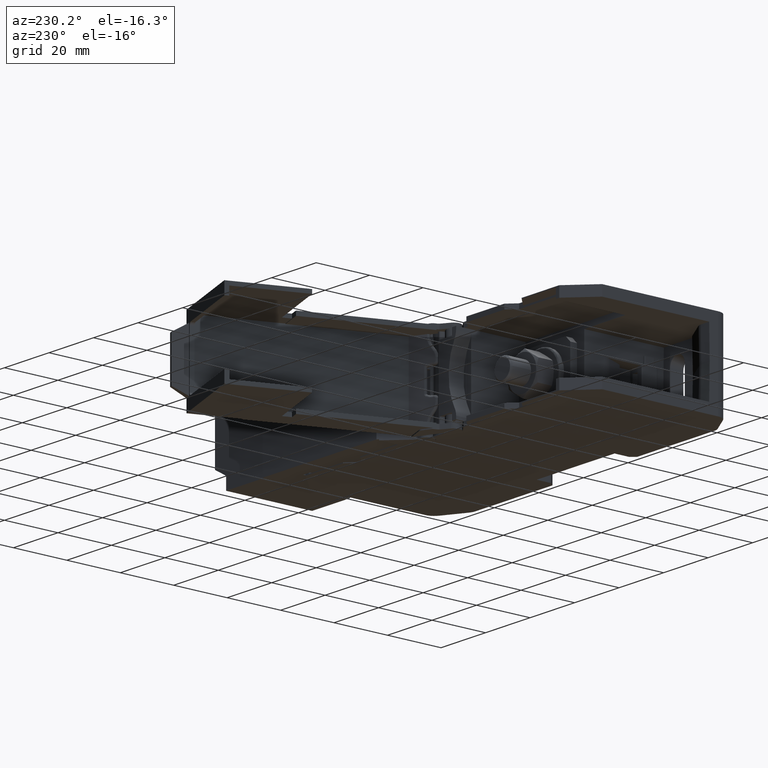
[diagram: clean part render]
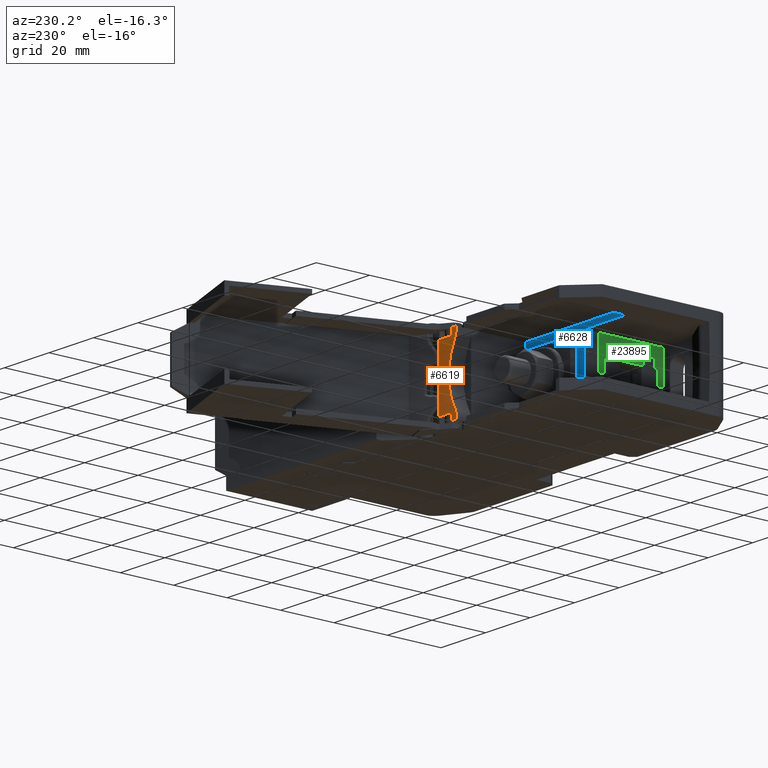
[diagram: same view with three faces highlighted in distinct colors, each labeled with its STEP entity id]
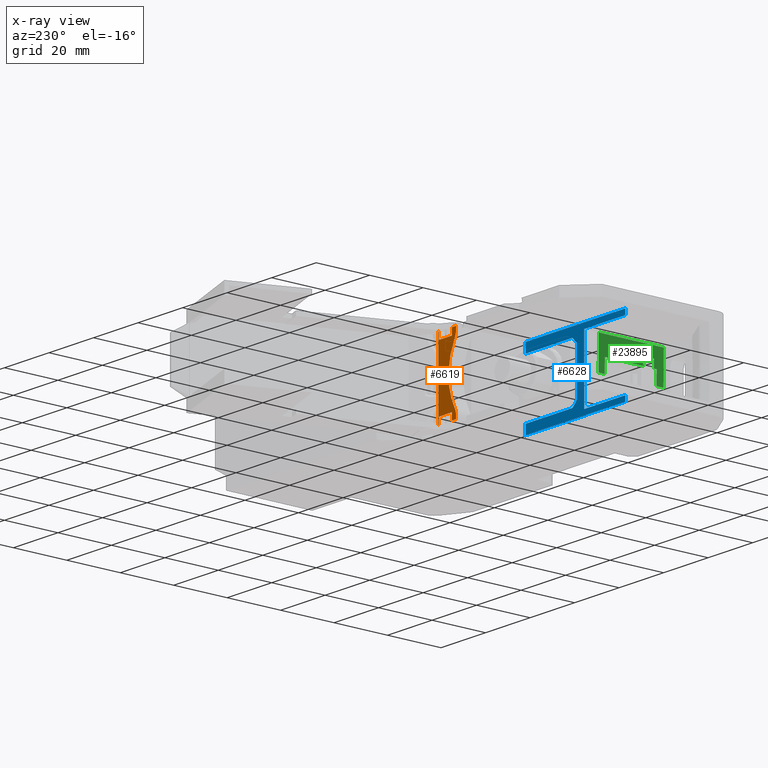
[diagram: x-ray of the same camera — body ghosted, the three highlighted faces saturated]
A machine part, auxiliary view with three faces highlighted in distinct colors.
The next image is the same camera in x-ray (body ghosted, the three faces saturated) — at least one of them is partly hidden behind the body in this view.
Their STEP definitions:

[orange] entity #6619 — the highlighted planar face has unit normal (0, -1, 0).
#1619 = VECTOR ( 'NONE', #17131, 1000.000000000000000 ) ;
#1620 = VECTOR ( 'NONE', #17224, 1000.000000000000000 ) ;
#1630 = VECTOR ( 'NONE', #17220, 1000.000000000000000 ) ;
#1681 = AXIS2_PLACEMENT_3D ( 'NONE', #17825, #17886, #17839 ) ;
#1835 = EDGE_CURVE ( 'NONE', #12487, #12671, #4652, .T. ) ;
#1923 = EDGE_CURVE ( 'NONE', #12539, #12527, #13994, .T. ) ;
#2158 = EDGE_CURVE ( 'NONE', #13461, #13237, #15697, .T. ) ;
#2173 = EDGE_CURVE ( 'NONE', #12523, #9976, #15744, .T. ) ;
#2228 = EDGE_CURVE ( 'NONE', #12479, #12507, #13569, .T. ) ;
#4652 = LINE ( 'NONE', #4657, #7566 ) ;
#4657 = CARTESIAN_POINT ( 'NONE',  ( 156.1153445845090200, 35.50000057880254200, 27.49999999999764800 ) ) ;
#4659 = DIRECTION ( 'NONE',  ( -1.000000000000000000, -0.0000000000000000000, -0.0000000000000000000 ) ) ;
#6558 = EDGE_CURVE ( 'NONE', #13236, #12539, #17117, .T. ) ;
#6560 = EDGE_CURVE ( 'NONE', #12498, #12532, #17156, .T. ) ;
#6571 = EDGE_CURVE ( 'NONE', #12496, #12520, #13661, .T. ) ;
#6574 = EDGE_CURVE ( 'NONE', #12527, #12487, #17213, .T. ) ;
#6592 = EDGE_CURVE ( 'NONE', #12520, #12479, #13644, .T. ) ;
#6619 = ADVANCED_FACE ( 'NONE', ( #17872 ), #17810, .F. ) ;
#7566 = VECTOR ( 'NONE', #4659, 1000.000000000000000 ) ;
#7650 = VECTOR ( 'NONE', #13968, 1000.000000000000000 ) ;
#7825 = VECTOR ( 'NONE', #15719, 1000.000000000000000 ) ;
#7858 = VECTOR ( 'NONE', #15786, 1000.000000000000000 ) ;
#8567 = EDGE_CURVE ( 'NONE', #13236, #13237, #22296, .T. ) ;
#9372 = EDGE_LOOP ( 'NONE', ( #17572, #17596, #17577, #17591, #17573, #17569, #17560, #17566, #17576, #17590, #17546, #17630, #17605, #17602, #17629, #17545 ) ) ;
#9976 = VERTEX_POINT ( 'NONE', #22616 ) ;
#11082 = EDGE_CURVE ( 'NONE', #13461, #9976, #24723, .T. ) ;
#12479 = VERTEX_POINT ( 'NONE', #26257 ) ;
#12487 = VERTEX_POINT ( 'NONE', #26258 ) ;
#12496 = VERTEX_POINT ( 'NONE', #26264 ) ;
#12498 = VERTEX_POINT ( 'NONE', #26268 ) ;
#12507 = VERTEX_POINT ( 'NONE', #26249 ) ;
#12520 = VERTEX_POINT ( 'NONE', #26345 ) ;
#12523 = VERTEX_POINT ( 'NONE', #26307 ) ;
#12527 = VERTEX_POINT ( 'NONE', #26321 ) ;
#12532 = VERTEX_POINT ( 'NONE', #26339 ) ;
#12539 = VERTEX_POINT ( 'NONE', #26325 ) ;
#12659 = VERTEX_POINT ( 'NONE', #26487 ) ;
#12671 = VERTEX_POINT ( 'NONE', #26469 ) ;
#13236 = VERTEX_POINT ( 'NONE', #27033 ) ;
#13237 = VERTEX_POINT ( 'NONE', #27053 ) ;
#13461 = VERTEX_POINT ( 'NONE', #27243 ) ;
#13569 = B_SPLINE_CURVE_WITH_KNOTS ( 'NONE', 3,
 ( #15897, #15899, #15857, #15923 ),
 .UNSPECIFIED., .F., .F.,
 ( 4, 4 ),
 ( 0.0000000000000000000, 1.000000000000000000 ),
 .UNSPECIFIED. ) ;
#13644 = B_SPLINE_CURVE_WITH_KNOTS ( 'NONE', 3,
 ( #17308, #17304, #17346, #17327, #17331, #17315, #17319, #17297, #17322, #17323 ),
 .UNSPECIFIED., .F., .F.,
 ( 4, 2, 2, 2, 4 ),
 ( 0.0000000000000000000, 0.2500000000000000000, 0.5000000000000000000, 0.7500000000000000000, 1.000000000000000000 ),
 .UNSPECIFIED. ) ;
#13661 = B_SPLINE_CURVE_WITH_KNOTS ( 'NONE', 3,
 ( #17194, #17197, #17201, #17206 ),
 .UNSPECIFIED., .F., .F.,
 ( 4, 4 ),
 ( 0.0000000000000000000, 1.000000000000000000 ),
 .UNSPECIFIED. ) ;
#13968 = DIRECTION ( 'NONE',  ( -1.000000000000000000, -0.0000000000000000000, -0.0000000000000000000 ) ) ;
#13994 = LINE ( 'NONE', #14007, #7650 ) ;
#14007 = CARTESIAN_POINT ( 'NONE',  ( 156.1153445845090200, 35.50000057880254200, 24.99999999999740300 ) ) ;
#15697 = LINE ( 'NONE', #15718, #7825 ) ;
#15718 = CARTESIAN_POINT ( 'NONE',  ( 158.4663172396262500, 35.50000057880254200, -3.746499482399965300 ) ) ;
#15719 = DIRECTION ( 'NONE',  ( -0.0000000000000000000, 0.0000000000000000000, 1.000000000000000000 ) ) ;
#15744 = LINE ( 'NONE', #15789, #7858 ) ;
#15786 = DIRECTION ( 'NONE',  ( 0.0000000000000000000, -0.0000000000000000000, -1.000000000000000000 ) ) ;
#15789 = CARTESIAN_POINT ( 'NONE',  ( 158.2269398131254800, 35.50000057880254200, -3.746499482399965300 ) ) ;
#15857 = CARTESIAN_POINT ( 'NONE',  ( 150.5849405092924900, 35.50000057880254900, 1.419059744843620600 ) ) ;
#15897 = CARTESIAN_POINT ( 'NONE',  ( 151.2225632736955000, 35.50000057880254900, 3.011431368606357400 ) ) ;
#15899 = CARTESIAN_POINT ( 'NONE',  ( 150.8067553595144300, 35.50000057880254900, 2.269026186690926900 ) ) ;
#15923 = CARTESIAN_POINT ( 'NONE',  ( 150.5849405092924900, 35.50000057880254200, 0.5681416079876247000 ) ) ;
#17117 = LINE ( 'NONE', #17130, #1619 ) ;
#17130 = CARTESIAN_POINT ( 'NONE',  ( 158.2269398131254800, 35.50000057880254200, -3.746499482399965300 ) ) ;
#17131 = DIRECTION ( 'NONE',  ( 0.0000000000000000000, -0.0000000000000000000, -1.000000000000000000 ) ) ;
#17156 = LINE ( 'NONE', #17171, #1630 ) ;
#17171 = CARTESIAN_POINT ( 'NONE',  ( 152.4196446246919000, 35.50000057880254200, -3.746499482399965300 ) ) ;
#17194 = CARTESIAN_POINT ( 'NONE',  ( 150.5849405092924900, 35.50000057880253500, 26.43185839201016700 ) ) ;
#17197 = CARTESIAN_POINT ( 'NONE',  ( 150.5849405092924900, 35.50000057880254200, 25.58094025515419300 ) ) ;
#17201 = CARTESIAN_POINT ( 'NONE',  ( 150.8067553595144300, 35.50000057880254200, 24.73097381330688900 ) ) ;
#17206 = CARTESIAN_POINT ( 'NONE',  ( 151.2225632736953900, 35.50000057880254900, 23.98856863139141300 ) ) ;
#17213 = LINE ( 'NONE', #17279, #1620 ) ;
#17220 = DIRECTION ( 'NONE',  ( -0.0000000000000000000, 0.0000000000000000000, 1.000000000000000000 ) ) ;
#17224 = DIRECTION ( 'NONE',  ( -0.0000000000000000000, 0.0000000000000000000, 1.000000000000000000 ) ) ;
#17279 = CARTESIAN_POINT ( 'NONE',  ( 152.4196446246919800, 35.50000057880254200, -3.746499482399965300 ) ) ;
#17297 = CARTESIAN_POINT ( 'NONE',  ( 152.8029948436298800, 35.50000057880255600, 6.312850410555328500 ) ) ;
#17304 = CARTESIAN_POINT ( 'NONE',  ( 152.1150546015064200, 35.50000057880254900, 22.39506796922479700 ) ) ;
#17308 = CARTESIAN_POINT ( 'NONE',  ( 151.2225632736953900, 35.50000057880254900, 23.98856863139141300 ) ) ;
#17315 = CARTESIAN_POINT ( 'NONE',  ( 153.9597540208479800, 35.50000057880255600, 11.67358681275364200 ) ) ;
#17319 = CARTESIAN_POINT ( 'NONE',  ( 153.7253770933270100, 35.50000057880254900, 9.847302490810061900 ) ) ;
#17322 = CARTESIAN_POINT ( 'NONE',  ( 152.1150546015065900, 35.50000057880254900, 4.604932030772942200 ) ) ;
#17323 = CARTESIAN_POINT ( 'NONE',  ( 151.2225632736955000, 35.50000057880254900, 3.011431368606357400 ) ) ;
#17327 = CARTESIAN_POINT ( 'NONE',  ( 153.7253770933269300, 35.50000057880254200, 17.15269750918771100 ) ) ;
#17331 = CARTESIAN_POINT ( 'NONE',  ( 153.9597540208479200, 35.50000057880254900, 15.32641318724413400 ) ) ;
#17346 = CARTESIAN_POINT ( 'NONE',  ( 152.8029948436297600, 35.50000057880254900, 20.68714958944243100 ) ) ;
#17545 = ORIENTED_EDGE ( 'NONE', *, *, #19389, .F. ) ;
#17546 = ORIENTED_EDGE ( 'NONE', *, *, #11082, .T. ) ;
#17560 = ORIENTED_EDGE ( 'NONE', *, *, #1923, .F. ) ;
#17566 = ORIENTED_EDGE ( 'NONE', *, *, #6558, .F. ) ;
#17569 = ORIENTED_EDGE ( 'NONE', *, *, #6574, .F. ) ;
#17572 = ORIENTED_EDGE ( 'NONE', *, *, #2228, .F. ) ;
#17573 = ORIENTED_EDGE ( 'NONE', *, *, #1835, .F. ) ;
#17576 = ORIENTED_EDGE ( 'NONE', *, *, #8567, .T. ) ;
#17577 = ORIENTED_EDGE ( 'NONE', *, *, #6571, .F. ) ;
#17590 = ORIENTED_EDGE ( 'NONE', *, *, #2158, .F. ) ;
#17591 = ORIENTED_EDGE ( 'NONE', *, *, #19421, .F. ) ;
#17596 = ORIENTED_EDGE ( 'NONE', *, *, #6592, .F. ) ;
#17602 = ORIENTED_EDGE ( 'NONE', *, *, #6560, .F. ) ;
#17605 = ORIENTED_EDGE ( 'NONE', *, *, #19417, .F. ) ;
#17629 = ORIENTED_EDGE ( 'NONE', *, *, #19375, .T. ) ;
#17630 = ORIENTED_EDGE ( 'NONE', *, *, #2173, .F. ) ;
#17810 = PLANE ( 'NONE',  #1681 ) ;
#17825 = CARTESIAN_POINT ( 'NONE',  ( 156.1153445845090200, 35.50000057880254200, -3.746499482399965300 ) ) ;
#17839 = DIRECTION ( 'NONE',  ( 0.0000000000000000000, -0.0000000000000000000, -1.000000000000000000 ) ) ;
#17872 = FACE_OUTER_BOUND ( 'NONE', #9372, .T. ) ;
#17886 = DIRECTION ( 'NONE',  ( 0.0000000000000000000, -1.000000000000000000, 0.0000000000000000000 ) ) ;
#19375 = EDGE_CURVE ( 'NONE', #12498, #12659, #28136, .T. ) ;
#19389 = EDGE_CURVE ( 'NONE', #12507, #12659, #28172, .T. ) ;
#19417 = EDGE_CURVE ( 'NONE', #12532, #12523, #28288, .T. ) ;
#19421 = EDGE_CURVE ( 'NONE', #12671, #12496, #28342, .T. ) ;
#20870 = VECTOR ( 'NONE', #22291, 1000.000000000000000 ) ;
#21107 = VECTOR ( 'NONE', #24774, 1000.000000000000000 ) ;
#21366 = VECTOR ( 'NONE', #28189, 1000.000000000000000 ) ;
#21379 = VECTOR ( 'NONE', #28341, 1000.000000000000000 ) ;
#21400 = VECTOR ( 'NONE', #28137, 1000.000000000000000 ) ;
#21415 = VECTOR ( 'NONE', #28327, 1000.000000000000000 ) ;
#22291 = DIRECTION ( 'NONE',  ( 1.000000000000000000, -0.0000000000000000000, 0.0000000000000000000 ) ) ;
#22296 = LINE ( 'NONE', #22301, #20870 ) ;
#22301 = CARTESIAN_POINT ( 'NONE',  ( 216.2500044082775000, 35.50000057880252100, 27.49999999999764100 ) ) ;
#22616 = CARTESIAN_POINT ( 'NONE',  ( 158.2269398131254800, 35.50000057880254200, -0.4999999999998580000 ) ) ;
#24723 = LINE ( 'NONE', #24724, #21107 ) ;
#24724 = CARTESIAN_POINT ( 'NONE',  ( 216.2500044082775000, 35.50000057880254200, -0.4999999999998580000 ) ) ;
#24774 = DIRECTION ( 'NONE',  ( -1.000000000000000000, -0.0000000000000000000, 0.0000000000000000000 ) ) ;
#26249 = CARTESIAN_POINT ( 'NONE',  ( 150.5849405092924900, 35.50000057880254200, 0.5681416079876247000 ) ) ;
#26257 = CARTESIAN_POINT ( 'NONE',  ( 151.2225632736955000, 35.50000057880254900, 3.011431368606357400 ) ) ;
#26258 = CARTESIAN_POINT ( 'NONE',  ( 152.4196446246919800, 35.50000057880254200, 27.49999999999764800 ) ) ;
#26264 = CARTESIAN_POINT ( 'NONE',  ( 150.5849405092924900, 35.50000057880253500, 26.43185839201016700 ) ) ;
#26268 = CARTESIAN_POINT ( 'NONE',  ( 152.4196446246919000, 35.50000057880252800, -0.4999999999998581100 ) ) ;
#26307 = CARTESIAN_POINT ( 'NONE',  ( 158.2269398131254800, 35.50000057880254200, 2.000000000000506700 ) ) ;
#26321 = CARTESIAN_POINT ( 'NONE',  ( 152.4196446246919800, 35.50000057880253500, 24.99999999999741000 ) ) ;
#26325 = CARTESIAN_POINT ( 'NONE',  ( 158.2269398131254800, 35.50000057880253500, 24.99999999999740300 ) ) ;
#26339 = CARTESIAN_POINT ( 'NONE',  ( 152.4196446246919000, 35.50000057880252800, 2.000000000000492500 ) ) ;
#26345 = CARTESIAN_POINT ( 'NONE',  ( 151.2225632736953900, 35.50000057880254900, 23.98856863139141300 ) ) ;
#26469 = CARTESIAN_POINT ( 'NONE',  ( 150.5849405092924900, 35.50000057880254200, 27.49999999999764800 ) ) ;
#26487 = CARTESIAN_POINT ( 'NONE',  ( 150.5849405092924900, 35.50000057880253500, -0.4999999999998581100 ) ) ;
#27033 = CARTESIAN_POINT ( 'NONE',  ( 158.2269398131254800, 35.50000057880252100, 27.49999999999764500 ) ) ;
#27053 = CARTESIAN_POINT ( 'NONE',  ( 158.4663172396262500, 35.50000057880254200, 27.49999999999764500 ) ) ;
#27243 = CARTESIAN_POINT ( 'NONE',  ( 158.4663172396262500, 35.50000057880254200, -0.4999999999998592800 ) ) ;
#28117 = CARTESIAN_POINT ( 'NONE',  ( 216.2500044082775000, 35.50000057880252800, -0.4999999999998580000 ) ) ;
#28136 = LINE ( 'NONE', #28117, #21400 ) ;
#28137 = DIRECTION ( 'NONE',  ( -1.000000000000000000, -0.0000000000000000000, 0.0000000000000000000 ) ) ;
#28167 = CARTESIAN_POINT ( 'NONE',  ( 150.5849405092924900, 35.50000057880254200, -3.746499482399965300 ) ) ;
#28172 = LINE ( 'NONE', #28167, #21366 ) ;
#28189 = DIRECTION ( 'NONE',  ( 0.0000000000000000000, -0.0000000000000000000, -1.000000000000000000 ) ) ;
#28288 = LINE ( 'NONE', #28291, #21379 ) ;
#28291 = CARTESIAN_POINT ( 'NONE',  ( 177.8116271584755200, 35.50000057880253500, 2.000000000000576900 ) ) ;
#28304 = CARTESIAN_POINT ( 'NONE',  ( 150.5849405092924900, 35.50000057880254200, -3.746499482399965300 ) ) ;
#28327 = DIRECTION ( 'NONE',  ( 0.0000000000000000000, -0.0000000000000000000, -1.000000000000000000 ) ) ;
#28341 = DIRECTION ( 'NONE',  ( 1.000000000000000000, -0.0000000000000000000, 3.318029755039045500E-015 ) ) ;
#28342 = LINE ( 'NONE', #28304, #21415 ) ;

[blue] entity #6628 — the highlighted planar face has unit normal (0, 1, 0).
#1585 = VECTOR ( 'NONE', #17024, 1000.000000000000100 ) ;
#1593 = VECTOR ( 'NONE', #17044, 1000.000000000000000 ) ;
#1610 = VECTOR ( 'NONE', #17128, 1000.000000000000000 ) ;
#1614 = VECTOR ( 'NONE', #17161, 1000.000000000000000 ) ;
#1636 = VECTOR ( 'NONE', #17243, 1000.000000000000000 ) ;
#1637 = AXIS2_PLACEMENT_3D ( 'NONE', #17985, #17953, #17980 ) ;
#1812 = EDGE_CURVE ( 'NONE', #12655, #12682, #12400, .T. ) ;
#1838 = EDGE_CURVE ( 'NONE', #12689, #12655, #13711, .T. ) ;
#1934 = EDGE_CURVE ( 'NONE', #12710, #12658, #14020, .T. ) ;
#6527 = EDGE_CURVE ( 'NONE', #13489, #12476, #17059, .T. ) ;
#6531 = EDGE_CURVE ( 'NONE', #13486, #12511, #17048, .T. ) ;
#6554 = EDGE_CURVE ( 'NONE', #12511, #13489, #17157, .T. ) ;
#6555 = EDGE_CURVE ( 'NONE', #12476, #12477, #17149, .T. ) ;
#6577 = EDGE_CURVE ( 'NONE', #12526, #13486, #17245, .T. ) ;
#6628 = ADVANCED_FACE ( 'NONE', ( #17922 ), #17928, .T. ) ;
#7548 = VECTOR ( 'NONE', #12411, 1000.000000000000000 ) ;
#7573 = VECTOR ( 'NONE', #13677, 1000.000000000000000 ) ;
#7671 = VECTOR ( 'NONE', #14056, 1000.000000000000000 ) ;
#9406 = EDGE_LOOP ( 'NONE', ( #17538, #17575, #17600, #17574, #17568, #17584, #17548, #17609, #17583, #17580, #17597, #17586, #17535, #17592 ) ) ;
#12400 = LINE ( 'NONE', #12417, #7548 ) ;
#12411 = DIRECTION ( 'NONE',  ( 1.000000000000000000, 0.0000000000000000000, -0.0000000000000000000 ) ) ;
#12417 = CARTESIAN_POINT ( 'NONE',  ( 124.2500041961109900, 9.499997447848647500, 27.49999999999745600 ) ) ;
#12476 = VERTEX_POINT ( 'NONE', #26247 ) ;
#12477 = VERTEX_POINT ( 'NONE', #26286 ) ;
#12511 = VERTEX_POINT ( 'NONE', #26324 ) ;
#12526 = VERTEX_POINT ( 'NONE', #26327 ) ;
#12655 = VERTEX_POINT ( 'NONE', #26460 ) ;
#12658 = VERTEX_POINT ( 'NONE', #26456 ) ;
#12665 = VERTEX_POINT ( 'NONE', #26482 ) ;
#12680 = VERTEX_POINT ( 'NONE', #26428 ) ;
#12682 = VERTEX_POINT ( 'NONE', #26447 ) ;
#12689 = VERTEX_POINT ( 'NONE', #26429 ) ;
#12697 = VERTEX_POINT ( 'NONE', #26437 ) ;
#12710 = VERTEX_POINT ( 'NONE', #26536 ) ;
#13486 = VERTEX_POINT ( 'NONE', #27302 ) ;
#13489 = VERTEX_POINT ( 'NONE', #27316 ) ;
#13677 = DIRECTION ( 'NONE',  ( 0.0000000000000000000, -0.0000000000000000000, 1.000000000000000000 ) ) ;
#13711 = LINE ( 'NONE', #13724, #7573 ) ;
#13724 = CARTESIAN_POINT ( 'NONE',  ( 105.7500036334176200, 9.499997447848647500, -81.15632523143961000 ) ) ;
#14020 = LINE ( 'NONE', #14022, #7671 ) ;
#14022 = CARTESIAN_POINT ( 'NONE',  ( 124.2500042234380100, 9.499997447848647500, -81.15632523143961000 ) ) ;
#14056 = DIRECTION ( 'NONE',  ( 0.0000000000000000000, -0.0000000000000000000, 1.000000000000000000 ) ) ;
#17024 = DIRECTION ( 'NONE',  ( -0.7071067811865474600, 0.0000000000000000000, -0.7071067811865474600 ) ) ;
#17035 = CARTESIAN_POINT ( 'NONE',  ( 127.4999999999980100, 9.499997447848647500, 4.999999999998686400 ) ) ;
#17040 = CARTESIAN_POINT ( 'NONE',  ( 129.4999999999980100, 9.499997447848647500, 23.99999999999870300 ) ) ;
#17044 = DIRECTION ( 'NONE',  ( 0.7071067811865524600, 0.0000000000000000000, -0.7071067811865426900 ) ) ;
#17048 = LINE ( 'NONE', #17040, #1585 ) ;
#17059 = LINE ( 'NONE', #17035, #1593 ) ;
#17127 = CARTESIAN_POINT ( 'NONE',  ( 127.4999999999980100, 9.499997447848647500, -81.15632523143961000 ) ) ;
#17128 = DIRECTION ( 'NONE',  ( -0.0000000000000000000, 0.0000000000000000000, -1.000000000000000000 ) ) ;
#17149 = LINE ( 'NONE', #17159, #1614 ) ;
#17157 = LINE ( 'NONE', #17127, #1610 ) ;
#17159 = CARTESIAN_POINT ( 'NONE',  ( 124.2500041961109900, 9.499997447848647500, 2.999999999998712100 ) ) ;
#17161 = DIRECTION ( 'NONE',  ( 1.000000000000000000, 0.0000000000000000000, -0.0000000000000000000 ) ) ;
#17243 = DIRECTION ( 'NONE',  ( -1.000000000000000000, -0.0000000000000000000, 0.0000000000000000000 ) ) ;
#17245 = LINE ( 'NONE', #17283, #1636 ) ;
#17283 = CARTESIAN_POINT ( 'NONE',  ( 124.2500041961109900, 9.499997447848647500, 23.99999999999868900 ) ) ;
#17535 = ORIENTED_EDGE ( 'NONE', *, *, #6554, .T. ) ;
#17538 = ORIENTED_EDGE ( 'NONE', *, *, #6555, .T. ) ;
#17548 = ORIENTED_EDGE ( 'NONE', *, *, #19361, .T. ) ;
#17568 = ORIENTED_EDGE ( 'NONE', *, *, #19420, .T. ) ;
#17574 = ORIENTED_EDGE ( 'NONE', *, *, #19382, .T. ) ;
#17575 = ORIENTED_EDGE ( 'NONE', *, *, #19347, .T. ) ;
#17580 = ORIENTED_EDGE ( 'NONE', *, *, #19426, .T. ) ;
#17583 = ORIENTED_EDGE ( 'NONE', *, *, #1812, .T. ) ;
#17584 = ORIENTED_EDGE ( 'NONE', *, *, #1934, .T. ) ;
#17586 = ORIENTED_EDGE ( 'NONE', *, *, #6531, .T. ) ;
#17592 = ORIENTED_EDGE ( 'NONE', *, *, #6527, .T. ) ;
#17597 = ORIENTED_EDGE ( 'NONE', *, *, #6577, .T. ) ;
#17600 = ORIENTED_EDGE ( 'NONE', *, *, #19388, .F. ) ;
#17609 = ORIENTED_EDGE ( 'NONE', *, *, #1838, .T. ) ;
#17922 = FACE_OUTER_BOUND ( 'NONE', #9406, .T. ) ;
#17928 = PLANE ( 'NONE',  #1637 ) ;
#17953 = DIRECTION ( 'NONE',  ( 0.0000000000000000000, 1.000000000000000000, 0.0000000000000000000 ) ) ;
#17980 = DIRECTION ( 'NONE',  ( 0.0000000000000000000, -0.0000000000000000000, 1.000000000000000000 ) ) ;
#17985 = CARTESIAN_POINT ( 'NONE',  ( 124.2500041961109900, 9.499997447848647500, -81.15632523143961000 ) ) ;
#19347 = EDGE_CURVE ( 'NONE', #12477, #12665, #28071, .T. ) ;
#19361 = EDGE_CURVE ( 'NONE', #12658, #12689, #28068, .T. ) ;
#19382 = EDGE_CURVE ( 'NONE', #12680, #12697, #28194, .T. ) ;
#19388 = EDGE_CURVE ( 'NONE', #12680, #12665, #28183, .T. ) ;
#19420 = EDGE_CURVE ( 'NONE', #12697, #12710, #28303, .T. ) ;
#19426 = EDGE_CURVE ( 'NONE', #12682, #12526, #28340, .T. ) ;
#21308 = VECTOR ( 'NONE', #28061, 1000.000000000000000 ) ;
#21383 = VECTOR ( 'NONE', #26902, 1000.000000000000000 ) ;
#21391 = VECTOR ( 'NONE', #28326, 1000.000000000000000 ) ;
#21405 = VECTOR ( 'NONE', #28198, 1000.000000000000000 ) ;
#21410 = VECTOR ( 'NONE', #28197, 1000.000000000000000 ) ;
#21484 = VECTOR ( 'NONE', #28330, 1000.000000000000000 ) ;
#26247 = CARTESIAN_POINT ( 'NONE',  ( 129.4999999999980100, 9.499997447848649300, 2.999999999998709900 ) ) ;
#26286 = CARTESIAN_POINT ( 'NONE',  ( 150.5849405092924900, 9.499997447848645700, 2.999999999998702800 ) ) ;
#26324 = CARTESIAN_POINT ( 'NONE',  ( 127.4999999999980100, 9.499997447848649300, 21.99999999999870300 ) ) ;
#26327 = CARTESIAN_POINT ( 'NONE',  ( 150.5849405092924900, 9.499997447848649300, 23.99999999999868900 ) ) ;
#26428 = CARTESIAN_POINT ( 'NONE',  ( 105.7500036334175900, 9.499997447848647500, -0.4999999999998580000 ) ) ;
#26429 = CARTESIAN_POINT ( 'NONE',  ( 105.7500036334176100, 9.499997447848647500, 25.50000000005076800 ) ) ;
#26437 = CARTESIAN_POINT ( 'NONE',  ( 105.7500036334176200, 9.499997447848647500, 1.500000000000140100 ) ) ;
#26447 = CARTESIAN_POINT ( 'NONE',  ( 150.5849405092924900, 9.499997447848649300, 27.49999999999750600 ) ) ;
#26456 = CARTESIAN_POINT ( 'NONE',  ( 124.2500040574889200, 9.499997447848647500, 25.50000000005076800 ) ) ;
#26460 = CARTESIAN_POINT ( 'NONE',  ( 105.7500036334176100, 9.499997447848647500, 27.49999999999745600 ) ) ;
#26482 = CARTESIAN_POINT ( 'NONE',  ( 150.5849405092924900, 9.499997447848647500, -0.4999999999998591700 ) ) ;
#26536 = CARTESIAN_POINT ( 'NONE',  ( 124.2500042234380100, 9.499997447848647500, 1.500000000000140100 ) ) ;
#26902 = DIRECTION ( 'NONE',  ( -1.000000000000000000, -0.0000000000000000000, 0.0000000000000000000 ) ) ;
#27302 = CARTESIAN_POINT ( 'NONE',  ( 129.4999999999980100, 9.499997447848649300, 23.99999999999870000 ) ) ;
#27316 = CARTESIAN_POINT ( 'NONE',  ( 127.4999999999980100, 9.499997447848649300, 4.999999999998697000 ) ) ;
#28050 = CARTESIAN_POINT ( 'NONE',  ( 150.5849405092924900, 9.499997447848644000, -158.0704905562944900 ) ) ;
#28061 = DIRECTION ( 'NONE',  ( 0.0000000000000000000, 0.0000000000000000000, -1.000000000000000000 ) ) ;
#28068 = LINE ( 'NONE', #28069, #21383 ) ;
#28069 = CARTESIAN_POINT ( 'NONE',  ( 124.2500043626756000, 9.499997447848647500, 25.49999999999745300 ) ) ;
#28071 = LINE ( 'NONE', #28050, #21308 ) ;
#28163 = CARTESIAN_POINT ( 'NONE',  ( 216.2500044082775000, 9.499997447848647500, -0.4999999999998580000 ) ) ;
#28183 = LINE ( 'NONE', #28163, #21410 ) ;
#28192 = CARTESIAN_POINT ( 'NONE',  ( 105.7500036334176100, 9.499997447848647500, -0.4999999999998580000 ) ) ;
#28194 = LINE ( 'NONE', #28192, #21405 ) ;
#28197 = DIRECTION ( 'NONE',  ( 1.000000000000000000, 0.0000000000000000000, -0.0000000000000000000 ) ) ;
#28198 = DIRECTION ( 'NONE',  ( 0.0000000000000000000, 0.0000000000000000000, 1.000000000000000000 ) ) ;
#28303 = LINE ( 'NONE', #28324, #21391 ) ;
#28324 = CARTESIAN_POINT ( 'NONE',  ( 105.7500036334176100, 9.499997447848647500, 1.500000000000140100 ) ) ;
#28326 = DIRECTION ( 'NONE',  ( 1.000000000000000000, -0.0000000000000000000, 0.0000000000000000000 ) ) ;
#28330 = DIRECTION ( 'NONE',  ( 0.0000000000000000000, 0.0000000000000000000, -1.000000000000000000 ) ) ;
#28331 = CARTESIAN_POINT ( 'NONE',  ( 150.5849405092924900, 9.499997447848649300, -158.0704905562944900 ) ) ;
#28340 = LINE ( 'NONE', #28331, #21484 ) ;

[green] entity #23895 — the highlighted planar face has unit normal (0.9998, -0, 0.0175).
#1584 = VECTOR ( 'NONE', #17007, 1000.000000000000100 ) ;
#1596 = VECTOR ( 'NONE', #17094, 1000.000000000000000 ) ;
#1598 = VECTOR ( 'NONE', #16970, 1000.000000000000100 ) ;
#1834 = EDGE_CURVE ( 'NONE', #12717, #12675, #11853, .T. ) ;
#1859 = EDGE_CURVE ( 'NONE', #13515, #12675, #13756, .T. ) ;
#1885 = EDGE_CURVE ( 'NONE', #12709, #12717, #13848, .T. ) ;
#1897 = EDGE_CURVE ( 'NONE', #12709, #13494, #13898, .T. ) ;
#1898 = EDGE_CURVE ( 'NONE', #13495, #13499, #13900, .T. ) ;
#2436 = AXIS2_PLACEMENT_3D ( 'NONE', #5059, #5103, #5095 ) ;
#5059 = CARTESIAN_POINT ( 'NONE',  ( 124.4594651418142100, 9.699997447848639700, 13.49999999999886000 ) ) ;
#5089 = PLANE ( 'NONE',  #2436 ) ;
#5095 = DIRECTION ( 'NONE',  ( 0.01745240643728432400, 0.0000000000000000000, -0.9998476951563911600 ) ) ;
#5101 = FACE_OUTER_BOUND ( 'NONE', #9376, .T. ) ;
#5103 = DIRECTION ( 'NONE',  ( 0.9998476951563912700, -0.0000000000000000000, 0.01745240643728432700 ) ) ;
#6422 = EDGE_CURVE ( 'NONE', #13495, #13494, #16566, .T. ) ;
#6423 = EDGE_CURVE ( 'NONE', #13473, #13512, #13583, .T. ) ;
#6453 = EDGE_CURVE ( 'NONE', #13505, #13493, #16711, .T. ) ;
#6461 = EDGE_CURVE ( 'NONE', #13470, #13505, #16774, .T. ) ;
#6490 = EDGE_CURVE ( 'NONE', #13493, #13499, #13647, .T. ) ;
#6501 = EDGE_CURVE ( 'NONE', #13512, #13469, #13665, .T. ) ;
#6520 = EDGE_CURVE ( 'NONE', #13469, #13474, #16998, .T. ) ;
#6522 = EDGE_CURVE ( 'NONE', #13515, #13473, #16962, .T. ) ;
#6538 = EDGE_CURVE ( 'NONE', #13474, #13470, #17100, .T. ) ;
#7571 = VECTOR ( 'NONE', #12063, 1000.000000000000100 ) ;
#7594 = VECTOR ( 'NONE', #13828, 1000.000000000000100 ) ;
#7600 = VECTOR ( 'NONE', #13731, 1000.000000000000100 ) ;
#7639 = VECTOR ( 'NONE', #13909, 1000.000000000000000 ) ;
#7644 = VECTOR ( 'NONE', #13901, 1000.000000000000000 ) ;
#7942 = VECTOR ( 'NONE', #16557, 1000.000000000000100 ) ;
#7980 = VECTOR ( 'NONE', #16746, 1000.000000000000000 ) ;
#7981 = VECTOR ( 'NONE', #16769, 1000.000000000000100 ) ;
#9376 = EDGE_LOOP ( 'NONE', ( #18225, #18204, #18298, #18292, #18308, #17475, #17471, #17500, #18188, #18237, #17481, #18143, #18242, #17476 ) ) ;
#11853 = LINE ( 'NONE', #12049, #7571 ) ;
#12049 = CARTESIAN_POINT ( 'NONE',  ( 124.2913305045149200, -20.30000000000012200, 23.13236531508111300 ) ) ;
#12063 = DIRECTION ( 'NONE',  ( 0.01745251556837470300, 6.842498947022653200E-015, -0.9998476932514949200 ) ) ;
#12675 = VERTEX_POINT ( 'NONE', #26486 ) ;
#12709 = VERTEX_POINT ( 'NONE', #26549 ) ;
#12717 = VERTEX_POINT ( 'NONE', #26532 ) ;
#13469 = VERTEX_POINT ( 'NONE', #27234 ) ;
#13470 = VERTEX_POINT ( 'NONE', #27235 ) ;
#13473 = VERTEX_POINT ( 'NONE', #27320 ) ;
#13474 = VERTEX_POINT ( 'NONE', #27307 ) ;
#13493 = VERTEX_POINT ( 'NONE', #27311 ) ;
#13494 = VERTEX_POINT ( 'NONE', #27325 ) ;
#13495 = VERTEX_POINT ( 'NONE', #27297 ) ;
#13499 = VERTEX_POINT ( 'NONE', #27347 ) ;
#13505 = VERTEX_POINT ( 'NONE', #27303 ) ;
#13512 = VERTEX_POINT ( 'NONE', #27301 ) ;
#13515 = VERTEX_POINT ( 'NONE', #27348 ) ;
#13583 = B_SPLINE_CURVE_WITH_KNOTS ( 'NONE', 3,
 ( #16576, #16578, #16585, #16587 ),
 .UNSPECIFIED., .F., .F.,
 ( 4, 4 ),
 ( 0.0000000000000000000, 1.000000000000000000 ),
 .UNSPECIFIED. ) ;
#13647 = B_SPLINE_CURVE_WITH_KNOTS ( 'NONE', 3,
 ( #16886, #16887, #16864, #16905 ),
 .UNSPECIFIED., .F., .F.,
 ( 4, 4 ),
 ( 0.0000000000000000000, 1.000000000000000000 ),
 .UNSPECIFIED. ) ;
#13665 = B_SPLINE_CURVE_WITH_KNOTS ( 'NONE', 3,
 ( #16926, #16948, #16916, #16923, #16931, #16960, #16943, #16932, #16935, #16924, #16925, #16953 ),
 .UNSPECIFIED., .F., .F.,
 ( 4, 1, 1, 1, 1, 2, 2, 4 ),
 ( 0.0000000000000000000, 0.2499999999997109000, 0.3749999999995752300, 0.4374999999995212700, 0.4687499999994782000, 0.4843749999994566600, 0.4999999999994351200, 1.000000000000000000 ),
 .UNSPECIFIED. ) ;
#13731 = DIRECTION ( 'NONE',  ( -6.917744629889532000E-007, -0.9999999992144236200, -3.963173242997056300E-005 ) ) ;
#13751 = CARTESIAN_POINT ( 'NONE',  ( 124.4594669338486200, -17.69999999986885400, 13.50010266558243700 ) ) ;
#13756 = LINE ( 'NONE', #13751, #7600 ) ;
#13828 = DIRECTION ( 'NONE',  ( 0.01745248689199520000, 7.325704754212241800E-015, -0.9998476937520457400 ) ) ;
#13848 = LINE ( 'NONE', #13861, #7594 ) ;
#13861 = CARTESIAN_POINT ( 'NONE',  ( 124.2500030967889700, -20.30000000000013600, 25.49999999999745300 ) ) ;
#13884 = CARTESIAN_POINT ( 'NONE',  ( 124.4594651418762500, 9.699997447848639700, 13.50000000355417600 ) ) ;
#13892 = CARTESIAN_POINT ( 'NONE',  ( 124.2500030967889700, 9.699997447848639700, 25.49999999999745300 ) ) ;
#13898 = LINE ( 'NONE', #13892, #7639 ) ;
#13900 = LINE ( 'NONE', #13884, #7644 ) ;
#13901 = DIRECTION ( 'NONE',  ( -0.0000000000000000000, -1.000000000000000000, -0.0000000000000000000 ) ) ;
#13909 = DIRECTION ( 'NONE',  ( -0.0000000000000000000, 1.000000000000000000, 0.0000000000000000000 ) ) ;
#16557 = DIRECTION ( 'NONE',  ( -0.01745240643728432400, -0.0000000000000000000, 0.9998476951563911600 ) ) ;
#16566 = LINE ( 'NONE', #16584, #7942 ) ;
#16576 = CARTESIAN_POINT ( 'NONE',  ( 124.3721897128521300, -17.69999999986859900, 18.50000597525376700 ) ) ;
#16578 = CARTESIAN_POINT ( 'NONE',  ( 124.3721181577005300, -17.45374212242287400, 18.50000596779485200 ) ) ;
#16584 = CARTESIAN_POINT ( 'NONE',  ( 124.4594651418142100, 3.956286283061775300, 13.49999999999886000 ) ) ;
#16585 = CARTESIAN_POINT ( 'NONE',  ( 124.3720466024842000, -17.20748424497714900, 18.50000596780643000 ) ) ;
#16587 = CARTESIAN_POINT ( 'NONE',  ( 124.3712233125625600, -16.96122636752062400, 18.50618932811090600 ) ) ;
#16711 = LINE ( 'NONE', #16742, #7980 ) ;
#16742 = CARTESIAN_POINT ( 'NONE',  ( 124.3704705454168400, 9.699997447848639700, 18.59849701294880800 ) ) ;
#16746 = DIRECTION ( 'NONE',  ( 0.0000000000000000000, 1.000000000000000000, 0.0000000000000000000 ) ) ;
#16769 = DIRECTION ( 'NONE',  ( 0.01745240643728432400, 0.0000000000000000000, -0.9998476951563911600 ) ) ;
#16774 = LINE ( 'NONE', #16804, #7981 ) ;
#16804 = CARTESIAN_POINT ( 'NONE',  ( 124.4594651418142100, -12.69999999986970500, 13.49999999999886000 ) ) ;
#16864 = CARTESIAN_POINT ( 'NONE',  ( 124.4297998331845700, 1.668787054974768500, 15.19949902720258600 ) ) ;
#16886 = CARTESIAN_POINT ( 'NONE',  ( 124.3704703393997900, 1.655633981620090900, 18.59849643728960800 ) ) ;
#16887 = CARTESIAN_POINT ( 'NONE',  ( 124.4001349670322900, 1.662210515398891300, 16.89899804318879700 ) ) ;
#16905 = CARTESIAN_POINT ( 'NONE',  ( 124.4594649207127900, 1.675363620050056800, 13.50000000242405900 ) ) ;
#16916 = CARTESIAN_POINT ( 'NONE',  ( 124.3704702464405200, -16.92936348306480500, 18.55994876640604800 ) ) ;
#16923 = CARTESIAN_POINT ( 'NONE',  ( 124.3704702510826100, -16.88562780282318300, 18.57958554293143600 ) ) ;
#16924 = CARTESIAN_POINT ( 'NONE',  ( 124.3704702565016900, -16.80307968697893300, 18.59599366459973200 ) ) ;
#16925 = CARTESIAN_POINT ( 'NONE',  ( 124.3704702582909900, -16.75954225329038400, 18.59804311013794000 ) ) ;
#16926 = CARTESIAN_POINT ( 'NONE',  ( 124.3712233125625600, -16.96122636752062400, 18.50618932811090600 ) ) ;
#16931 = CARTESIAN_POINT ( 'NONE',  ( 124.3704702531068700, -16.85953002958460400, 18.58669504494357100 ) ) ;
#16932 = CARTESIAN_POINT ( 'NONE',  ( 124.3704702546848200, -16.83491965224032300, 18.59135383907123500 ) ) ;
#16935 = CARTESIAN_POINT ( 'NONE',  ( 124.3704702548843800, -16.83147269512025800, 18.59187377773205100 ) ) ;
#16943 = CARTESIAN_POINT ( 'NONE',  ( 124.3704702544309400, -16.83915146902652200, 18.59066068238503900 ) ) ;
#16948 = CARTESIAN_POINT ( 'NONE',  ( 124.3704702414442100, -16.95234858115377800, 18.53382963366805200 ) ) ;
#16953 = CARTESIAN_POINT ( 'NONE',  ( 124.3704744568210700, -16.69999999986862700, 18.59814698032866400 ) ) ;
#16960 = CARTESIAN_POINT ( 'NONE',  ( 124.3704702540448300, -16.84542365968585600, 18.58957257438697800 ) ) ;
#16962 = LINE ( 'NONE', #16964, #1598 ) ;
#16964 = CARTESIAN_POINT ( 'NONE',  ( 124.4594651418142100, -17.69999999986885400, 13.49999999999886000 ) ) ;
#16970 = DIRECTION ( 'NONE',  ( -0.01745240643728432400, -0.0000000000000000000, 0.9998476951563911600 ) ) ;
#16998 = LINE ( 'NONE', #17006, #1584 ) ;
#17006 = CARTESIAN_POINT ( 'NONE',  ( 124.4594651418142100, -16.69999999986863400, 13.49999999999886000 ) ) ;
#17007 = DIRECTION ( 'NONE',  ( -0.01745240643728432400, -0.0000000000000000000, 0.9998476951563911600 ) ) ;
#17073 = CARTESIAN_POINT ( 'NONE',  ( 124.3198245180724800, 9.699997447848639700, 21.50000597625737000 ) ) ;
#17094 = DIRECTION ( 'NONE',  ( 0.0000000000000000000, 1.000000000000000000, 0.0000000000000000000 ) ) ;
#17100 = LINE ( 'NONE', #17073, #1596 ) ;
#17471 = ORIENTED_EDGE ( 'NONE', *, *, #1834, .F. ) ;
#17475 = ORIENTED_EDGE ( 'NONE', *, *, #1859, .T. ) ;
#17476 = ORIENTED_EDGE ( 'NONE', *, *, #6461, .F. ) ;
#17481 = ORIENTED_EDGE ( 'NONE', *, *, #1898, .T. ) ;
#17500 = ORIENTED_EDGE ( 'NONE', *, *, #1885, .F. ) ;
#18143 = ORIENTED_EDGE ( 'NONE', *, *, #6490, .F. ) ;
#18188 = ORIENTED_EDGE ( 'NONE', *, *, #1897, .T. ) ;
#18204 = ORIENTED_EDGE ( 'NONE', *, *, #6520, .F. ) ;
#18225 = ORIENTED_EDGE ( 'NONE', *, *, #6538, .F. ) ;
#18237 = ORIENTED_EDGE ( 'NONE', *, *, #6422, .F. ) ;
#18242 = ORIENTED_EDGE ( 'NONE', *, *, #6453, .F. ) ;
#18292 = ORIENTED_EDGE ( 'NONE', *, *, #6423, .F. ) ;
#18298 = ORIENTED_EDGE ( 'NONE', *, *, #6501, .F. ) ;
#18308 = ORIENTED_EDGE ( 'NONE', *, *, #6522, .F. ) ;
#23895 = ADVANCED_FACE ( 'NONE', ( #5101 ), #5089, .F. ) ;
#26486 = CARTESIAN_POINT ( 'NONE',  ( 124.4594651391875000, -20.30000000000009700, 13.49999962342111500 ) ) ;
#26532 = CARTESIAN_POINT ( 'NONE',  ( 124.2913305045149200, -20.30000000000012200, 23.13236531508111300 ) ) ;
#26549 = CARTESIAN_POINT ( 'NONE',  ( 124.2500030967889700, -20.30000000000007200, 25.49999999999745300 ) ) ;
#27234 = CARTESIAN_POINT ( 'NONE',  ( 124.3704744568210700, -16.69999999986862700, 18.59814698032866400 ) ) ;
#27235 = CARTESIAN_POINT ( 'NONE',  ( 124.3198245180724900, -12.69999999986970400, 21.50000597625737000 ) ) ;
#27297 = CARTESIAN_POINT ( 'NONE',  ( 124.4594651418295500, 3.956286283061775300, 13.50000000446936700 ) ) ;
#27301 = CARTESIAN_POINT ( 'NONE',  ( 124.3712233125625600, -16.96122636752062400, 18.50618932811090600 ) ) ;
#27303 = CARTESIAN_POINT ( 'NONE',  ( 124.3704705454168400, -12.69999999986970400, 18.59849601815607700 ) ) ;
#27307 = CARTESIAN_POINT ( 'NONE',  ( 124.3198245180724900, -16.69999999986868000, 21.50000597625737000 ) ) ;
#27311 = CARTESIAN_POINT ( 'NONE',  ( 124.3704703393997900, 1.655633981620090900, 18.59849643728960800 ) ) ;
#27320 = CARTESIAN_POINT ( 'NONE',  ( 124.3721897128521300, -17.69999999986859900, 18.50000597525376700 ) ) ;
#27325 = CARTESIAN_POINT ( 'NONE',  ( 124.2500038866824600, 3.956286283061775300, 25.50000000551980500 ) ) ;
#27347 = CARTESIAN_POINT ( 'NONE',  ( 124.4594649207127900, 1.675363620050056800, 13.50000000242405900 ) ) ;
#27348 = CARTESIAN_POINT ( 'NONE',  ( 124.4594657392802900, -17.69999999986927700, 13.50010265863411800 ) ) ;